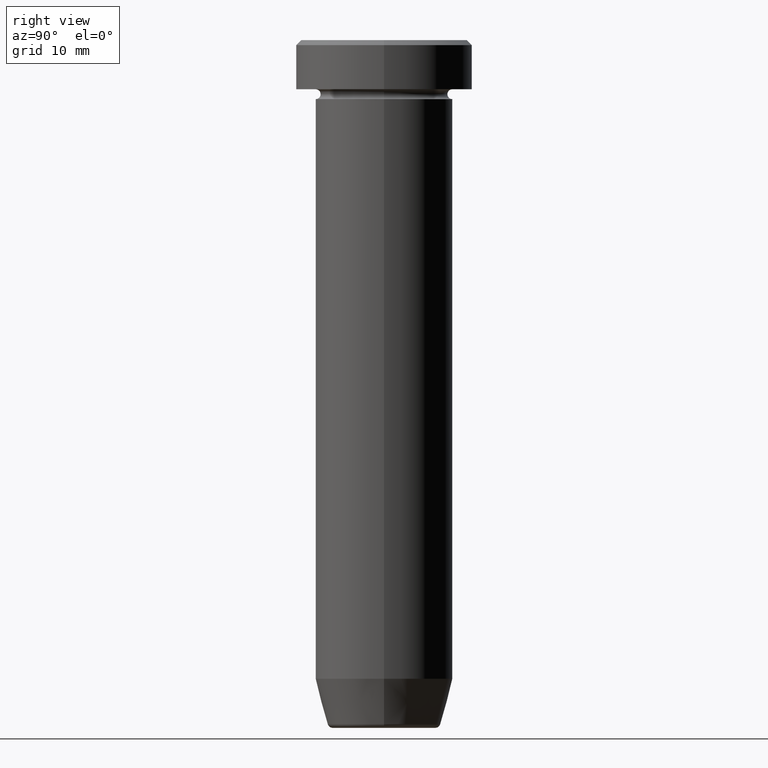
[diagram: clean part render]
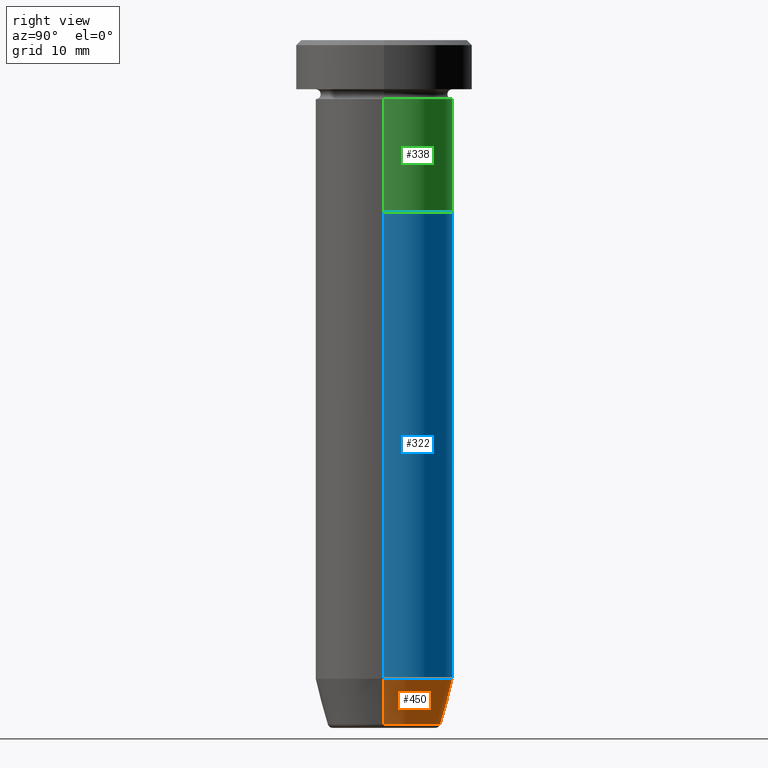
[diagram: same view with three faces highlighted in distinct colors, each labeled with its STEP entity id]
A machine part, right view with three faces highlighted in distinct colors.
Their STEP definitions:

[orange] entity #450 — the highlighted conical surface has half-angle 15 deg.
#17 = ORIENTED_EDGE ( 'NONE', *, *, #154, .F. ) ;
#22 = VERTEX_POINT ( 'NONE', #125 ) ;
#23 = DIRECTION ( 'NONE',  ( -0.2588190451025210170, 3.169619151431768639E-17, 0.9659258262890680902 ) ) ;
#37 = VECTOR ( 'NONE', #297, 1000.000000000000114 ) ;
#53 = DIRECTION ( 'NONE',  ( -0.000000000000000000, -0.000000000000000000, 1.000000000000000000 ) ) ;
#88 = LINE ( 'NONE', #256, #181 ) ;
#98 = AXIS2_PLACEMENT_3D ( 'NONE', #542, #313, #494 ) ;
#101 = EDGE_CURVE ( 'NONE', #555, #22, #113, .T. ) ;
#104 = EDGE_CURVE ( 'NONE', #555, #370, #260, .T. ) ;
#113 = LINE ( 'NONE', #588, #37 ) ;
#115 = CARTESIAN_POINT ( 'NONE',  ( -5.759553456999434218, 7.812973149831952759E-16, -69.62940952255127058 ) ) ;
#122 = ORIENTED_EDGE ( 'NONE', *, *, #104, .T. ) ;
#125 = CARTESIAN_POINT ( 'NONE',  ( 7.000000000000000000, 0.000000000000000000, -65.00000000000000000 ) ) ;
#132 = AXIS2_PLACEMENT_3D ( 'NONE', #519, #53, #243 ) ;
#136 = CARTESIAN_POINT ( 'NONE',  ( 0.000000000000000000, 0.000000000000000000, -69.62940952255127058 ) ) ;
#154 = EDGE_CURVE ( 'NONE', #22, #573, #361, .T. ) ;
#181 = VECTOR ( 'NONE', #23, 1000.000000000000114 ) ;
#184 = DIRECTION ( 'NONE',  ( -1.000000000000000000, 0.000000000000000000, 0.000000000000000000 ) ) ;
#194 = CONICAL_SURFACE ( 'NONE', #132, 5.660254037844383745, 0.2617993877991497409 ) ;
#198 = CARTESIAN_POINT ( 'NONE',  ( -7.000000000000000000, 8.572527594031473190E-16, -65.00000000000000000 ) ) ;
#240 = CARTESIAN_POINT ( 'NONE',  ( 5.759553456999434218, 0.000000000000000000, -69.62940952255127058 ) ) ;
#243 = DIRECTION ( 'NONE',  ( 1.000000000000000000, 0.000000000000000000, 0.000000000000000000 ) ) ;
#256 = CARTESIAN_POINT ( 'NONE',  ( -5.660254037844383745, 6.931811989807006322E-16, -70.00000000000000000 ) ) ;
#260 = CIRCLE ( 'NONE', #425, 5.759553456999434218 ) ;
#297 = DIRECTION ( 'NONE',  ( 0.2588190451025210170, 0.000000000000000000, 0.9659258262890680902 ) ) ;
#308 = FACE_OUTER_BOUND ( 'NONE', #458, .T. ) ;
#313 = DIRECTION ( 'NONE',  ( -0.000000000000000000, -0.000000000000000000, 1.000000000000000000 ) ) ;
#361 = CIRCLE ( 'NONE', #98, 7.000000000000000000 ) ;
#370 = VERTEX_POINT ( 'NONE', #115 ) ;
#410 = DIRECTION ( 'NONE',  ( -0.000000000000000000, -0.000000000000000000, 1.000000000000000000 ) ) ;
#425 = AXIS2_PLACEMENT_3D ( 'NONE', #136, #410, #184 ) ;
#450 = ADVANCED_FACE ( 'NONE', ( #308 ), #194, .T. ) ;
#458 = EDGE_LOOP ( 'NONE', ( #122, #556, #17, #465 ) ) ;
#465 = ORIENTED_EDGE ( 'NONE', *, *, #101, .F. ) ;
#494 = DIRECTION ( 'NONE',  ( 1.000000000000000000, 0.000000000000000000, 0.000000000000000000 ) ) ;
#515 = EDGE_CURVE ( 'NONE', #370, #573, #88, .T. ) ;
#519 = CARTESIAN_POINT ( 'NONE',  ( 0.000000000000000000, 0.000000000000000000, -70.00000000000000000 ) ) ;
#542 = CARTESIAN_POINT ( 'NONE',  ( 0.000000000000000000, 0.000000000000000000, -65.00000000000000000 ) ) ;
#555 = VERTEX_POINT ( 'NONE', #240 ) ;
#556 = ORIENTED_EDGE ( 'NONE', *, *, #515, .T. ) ;
#573 = VERTEX_POINT ( 'NONE', #198 ) ;
#588 = CARTESIAN_POINT ( 'NONE',  ( 5.660254037844383745, 0.000000000000000000, -70.00000000000000000 ) ) ;

[blue] entity #322 — the highlighted cylindrical surface (partial cylindrical patch) has radius 7 mm, axis along (-0, -0, 1).
#22 = VERTEX_POINT ( 'NONE', #125 ) ;
#27 = FACE_OUTER_BOUND ( 'NONE', #233, .T. ) ;
#49 = LINE ( 'NONE', #473, #549 ) ;
#69 = DIRECTION ( 'NONE',  ( 1.000000000000000000, 0.000000000000000000, 0.000000000000000000 ) ) ;
#87 = CARTESIAN_POINT ( 'NONE',  ( 7.000000000000000000, 0.000000000000000000, 0.000000000000000000 ) ) ;
#98 = AXIS2_PLACEMENT_3D ( 'NONE', #542, #313, #494 ) ;
#100 = CARTESIAN_POINT ( 'NONE',  ( -7.000000000000000000, 8.572527594031473190E-16, -17.50000000000000000 ) ) ;
#125 = CARTESIAN_POINT ( 'NONE',  ( 7.000000000000000000, 0.000000000000000000, -65.00000000000000000 ) ) ;
#149 = CIRCLE ( 'NONE', #527, 7.000000000000000000 ) ;
#154 = EDGE_CURVE ( 'NONE', #22, #573, #361, .T. ) ;
#166 = CARTESIAN_POINT ( 'NONE',  ( 0.000000000000000000, 0.000000000000000000, 0.000000000000000000 ) ) ;
#198 = CARTESIAN_POINT ( 'NONE',  ( -7.000000000000000000, 8.572527594031473190E-16, -65.00000000000000000 ) ) ;
#233 = EDGE_LOOP ( 'NONE', ( #551, #303, #502, #547 ) ) ;
#250 = CARTESIAN_POINT ( 'NONE',  ( 0.000000000000000000, 0.000000000000000000, -17.50000000000000000 ) ) ;
#258 = CYLINDRICAL_SURFACE ( 'NONE', #380, 7.000000000000000000 ) ;
#277 = VECTOR ( 'NONE', #503, 1000.000000000000000 ) ;
#303 = ORIENTED_EDGE ( 'NONE', *, *, #457, .T. ) ;
#313 = DIRECTION ( 'NONE',  ( -0.000000000000000000, -0.000000000000000000, 1.000000000000000000 ) ) ;
#322 = ADVANCED_FACE ( 'NONE', ( #27 ), #258, .T. ) ;
#324 = VERTEX_POINT ( 'NONE', #446 ) ;
#341 = DIRECTION ( 'NONE',  ( -0.000000000000000000, -0.000000000000000000, 1.000000000000000000 ) ) ;
#352 = DIRECTION ( 'NONE',  ( 1.000000000000000000, 0.000000000000000000, 0.000000000000000000 ) ) ;
#361 = CIRCLE ( 'NONE', #98, 7.000000000000000000 ) ;
#380 = AXIS2_PLACEMENT_3D ( 'NONE', #166, #341, #352 ) ;
#381 = EDGE_CURVE ( 'NONE', #324, #464, #149, .T. ) ;
#390 = LINE ( 'NONE', #87, #277 ) ;
#395 = EDGE_CURVE ( 'NONE', #22, #324, #390, .T. ) ;
#446 = CARTESIAN_POINT ( 'NONE',  ( 7.000000000000000000, 0.000000000000000000, -17.50000000000000000 ) ) ;
#457 = EDGE_CURVE ( 'NONE', #573, #464, #49, .T. ) ;
#464 = VERTEX_POINT ( 'NONE', #100 ) ;
#473 = CARTESIAN_POINT ( 'NONE',  ( -7.000000000000000000, 8.572527594031473190E-16, 0.000000000000000000 ) ) ;
#488 = DIRECTION ( 'NONE',  ( -0.000000000000000000, -0.000000000000000000, 1.000000000000000000 ) ) ;
#494 = DIRECTION ( 'NONE',  ( 1.000000000000000000, 0.000000000000000000, 0.000000000000000000 ) ) ;
#502 = ORIENTED_EDGE ( 'NONE', *, *, #381, .F. ) ;
#503 = DIRECTION ( 'NONE',  ( -0.000000000000000000, -0.000000000000000000, 1.000000000000000000 ) ) ;
#516 = DIRECTION ( 'NONE',  ( -0.000000000000000000, -0.000000000000000000, 1.000000000000000000 ) ) ;
#527 = AXIS2_PLACEMENT_3D ( 'NONE', #250, #488, #69 ) ;
#542 = CARTESIAN_POINT ( 'NONE',  ( 0.000000000000000000, 0.000000000000000000, -65.00000000000000000 ) ) ;
#547 = ORIENTED_EDGE ( 'NONE', *, *, #395, .F. ) ;
#549 = VECTOR ( 'NONE', #516, 1000.000000000000000 ) ;
#551 = ORIENTED_EDGE ( 'NONE', *, *, #154, .T. ) ;
#573 = VERTEX_POINT ( 'NONE', #198 ) ;

[green] entity #338 — the highlighted cylindrical surface (partial cylindrical patch) has radius 7 mm, axis along (-0, -0, 1).
#25 = CYLINDRICAL_SURFACE ( 'NONE', #307, 7.000000000000000000 ) ;
#34 = ORIENTED_EDGE ( 'NONE', *, *, #367, .F. ) ;
#46 = CIRCLE ( 'NONE', #172, 7.000000000000000000 ) ;
#62 = VERTEX_POINT ( 'NONE', #529 ) ;
#79 = CARTESIAN_POINT ( 'NONE',  ( 7.000000000000000000, 0.000000000000000000, -17.50000000000000000 ) ) ;
#110 = DIRECTION ( 'NONE',  ( 1.000000000000000000, 0.000000000000000000, 0.000000000000000000 ) ) ;
#120 = CARTESIAN_POINT ( 'NONE',  ( 0.000000000000000000, 0.000000000000000000, 0.000000000000000000 ) ) ;
#146 = CARTESIAN_POINT ( 'NONE',  ( 0.000000000000000000, 0.000000000000000000, -6.000000000000000000 ) ) ;
#162 = EDGE_LOOP ( 'NONE', ( #467, #495, #202, #34 ) ) ;
#163 = CARTESIAN_POINT ( 'NONE',  ( 7.000000000000000000, 0.000000000000000000, -6.000000000000000000 ) ) ;
#172 = AXIS2_PLACEMENT_3D ( 'NONE', #146, #334, #285 ) ;
#173 = DIRECTION ( 'NONE',  ( -0.000000000000000000, -0.000000000000000000, 1.000000000000000000 ) ) ;
#180 = VERTEX_POINT ( 'NONE', #79 ) ;
#202 = ORIENTED_EDGE ( 'NONE', *, *, #262, .F. ) ;
#208 = FACE_OUTER_BOUND ( 'NONE', #162, .T. ) ;
#213 = DIRECTION ( 'NONE',  ( -0.000000000000000000, -0.000000000000000000, 1.000000000000000000 ) ) ;
#219 = VECTOR ( 'NONE', #173, 1000.000000000000000 ) ;
#229 = VECTOR ( 'NONE', #525, 1000.000000000000000 ) ;
#262 = EDGE_CURVE ( 'NONE', #347, #424, #46, .T. ) ;
#285 = DIRECTION ( 'NONE',  ( 1.000000000000000000, 0.000000000000000000, 0.000000000000000000 ) ) ;
#289 = CARTESIAN_POINT ( 'NONE',  ( -7.000000000000000000, 8.572527594031473190E-16, 0.000000000000000000 ) ) ;
#307 = AXIS2_PLACEMENT_3D ( 'NONE', #120, #539, #110 ) ;
#318 = AXIS2_PLACEMENT_3D ( 'NONE', #394, #213, #401 ) ;
#327 = CIRCLE ( 'NONE', #318, 7.000000000000000000 ) ;
#334 = DIRECTION ( 'NONE',  ( -0.000000000000000000, -0.000000000000000000, 1.000000000000000000 ) ) ;
#338 = ADVANCED_FACE ( 'NONE', ( #208 ), #25, .T. ) ;
#347 = VERTEX_POINT ( 'NONE', #163 ) ;
#367 = EDGE_CURVE ( 'NONE', #180, #347, #581, .T. ) ;
#394 = CARTESIAN_POINT ( 'NONE',  ( 0.000000000000000000, 0.000000000000000000, -17.50000000000000000 ) ) ;
#401 = DIRECTION ( 'NONE',  ( 1.000000000000000000, 0.000000000000000000, 0.000000000000000000 ) ) ;
#424 = VERTEX_POINT ( 'NONE', #597 ) ;
#435 = LINE ( 'NONE', #289, #229 ) ;
#440 = EDGE_CURVE ( 'NONE', #180, #62, #327, .T. ) ;
#467 = ORIENTED_EDGE ( 'NONE', *, *, #440, .T. ) ;
#495 = ORIENTED_EDGE ( 'NONE', *, *, #569, .T. ) ;
#525 = DIRECTION ( 'NONE',  ( -0.000000000000000000, -0.000000000000000000, 1.000000000000000000 ) ) ;
#529 = CARTESIAN_POINT ( 'NONE',  ( -7.000000000000000000, 8.572527594031473190E-16, -17.50000000000000000 ) ) ;
#531 = CARTESIAN_POINT ( 'NONE',  ( 7.000000000000000000, 0.000000000000000000, 0.000000000000000000 ) ) ;
#539 = DIRECTION ( 'NONE',  ( -0.000000000000000000, -0.000000000000000000, 1.000000000000000000 ) ) ;
#569 = EDGE_CURVE ( 'NONE', #62, #424, #435, .T. ) ;
#581 = LINE ( 'NONE', #531, #219 ) ;
#597 = CARTESIAN_POINT ( 'NONE',  ( -7.000000000000000000, 8.572527594031473190E-16, -6.000000000000000000 ) ) ;